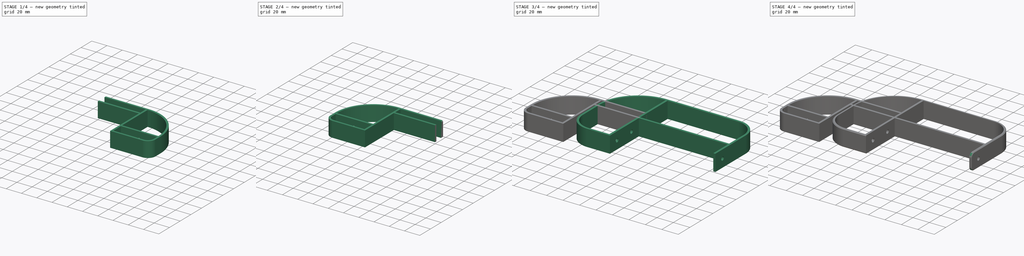
[diagram: build sequence overview — one tinted view per stage of 4, left to right]
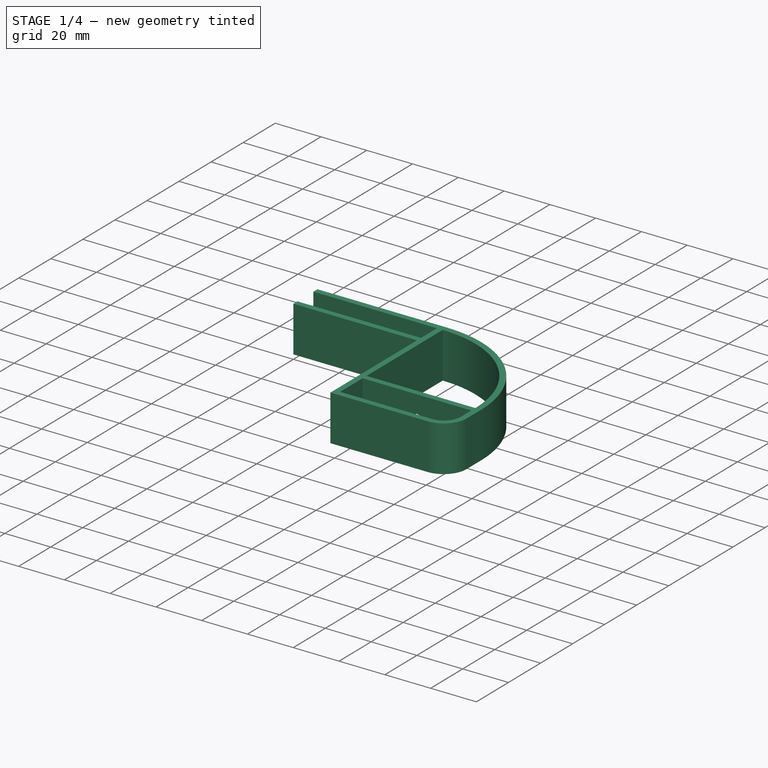
[diagram: stage 1 of 4 — iso view after this stage's code; geometry added in this stage tinted green]
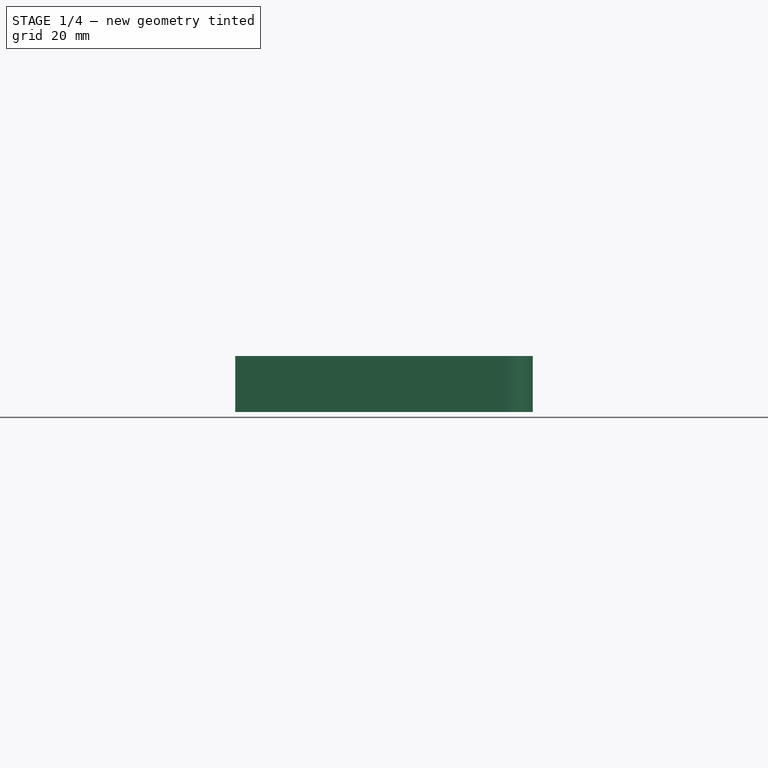
[diagram: stage 1 of 4 — front view after this stage's code; geometry added in this stage tinted green]
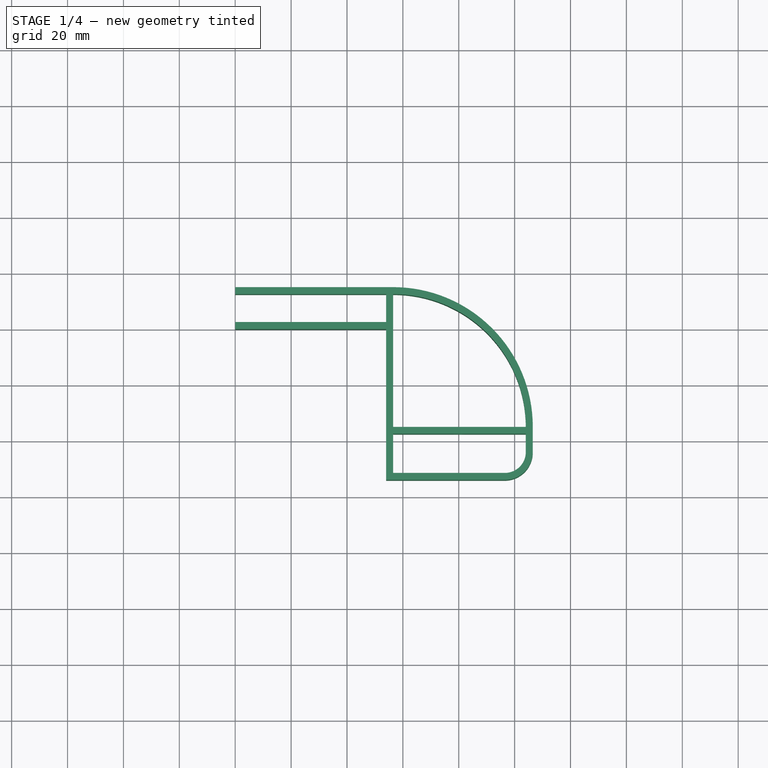
[diagram: stage 1 of 4 — top view after this stage's code; geometry added in this stage tinted green]
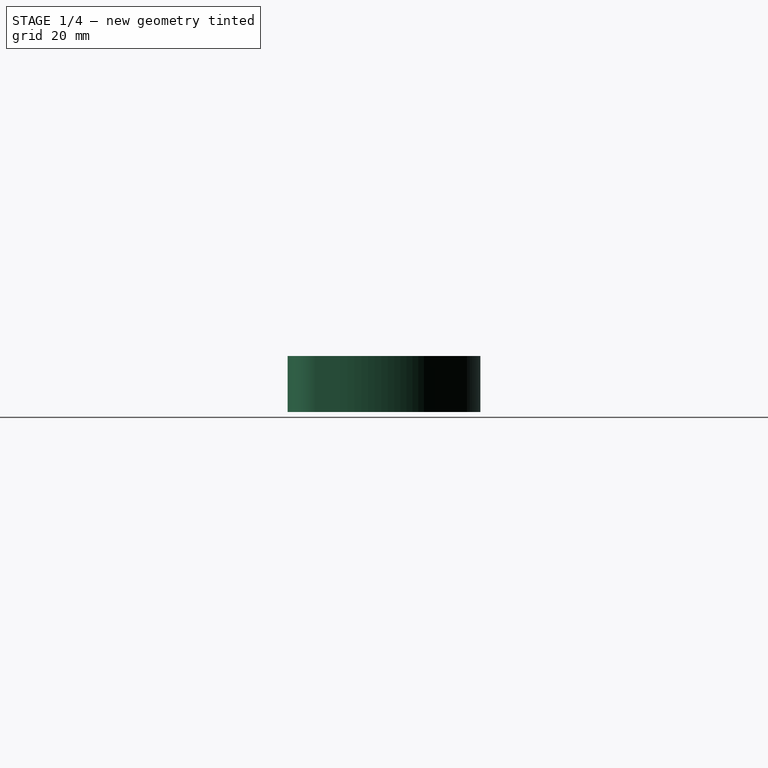
[diagram: stage 1 of 4 — right view after this stage's code; geometry added in this stage tinted green]
FCSTD DOCUMENT  (FreeCAD 0.21R33694 (Git))
Label: Bumpers
License: All rights reserved
LicenseURL: http://en.wikipedia.org/wiki/All_rights_reserved
objects: Sketcher::SketchObject×5, PartDesign::Pocket×3, PartDesign::Pad×2, PartDesign::Chamfer×2, PartDesign::Body×2, App::Part×2, PartDesign::Fillet×1, PartDesign::FeatureBase×1, Part::Mirroring×1
note: 25 computed .brp shape members not serialized (recipe doc carries the construction recipe); baked Part::Feature solids carry a one-line shape summary decoded from their .brp

FEATURE [PartDesign::Body] Body  label="bumper_asymmetric_body"
  Group = -> [Sketch,Pad,Sketch001,Sketch002,Pocket,Pocket001,Fillet,Chamfer]
  Origin = -> Origin001
  Tip = -> Chamfer
FEATURE [App::Part] Part  label="bumper_main"
  Group = -> [Body]
  Origin = -> Origin
  Placement = pos=(0,200,0) rot=(0,0,1;0rad)
FEATURE [Sketcher::SketchObject] Sketch003
  FullyConstrained = true
  MapMode = 5
  Support = -> [XY_Plane003]
  expr: Constraints[62] = 108 / 2
  sketch-geometry (25):
    g0: LineSegment StartX=0 StartY=0 StartZ=0 EndX=54 EndY=0 EndZ=0
    g1: LineSegment StartX=54 StartY=0 StartZ=0 EndX=54 EndY=-54 EndZ=0
    g2: LineSegment StartX=106.5 StartY=-44 StartZ=0 EndX=106.5 EndY=-35 EndZ=0
    g3: ArcOfCircle CenterX=56.5 CenterY=-35 CenterZ=0 NormalX=0 NormalY=0 NormalZ=1 AngleXU=0 Radius=50 StartAngle=0 EndAngle=1.5708
    g4: LineSegment StartX=56.5 StartY=15 StartZ=0 EndX=0 EndY=15 EndZ=0
    g5: LineSegment StartX=0 StartY=15 StartZ=0 EndX=0 EndY=12.5 EndZ=0
    g6: ArcOfCircle CenterX=96.5 CenterY=-44 CenterZ=0 NormalX=0 NormalY=0 NormalZ=1 AngleXU=0 Radius=10 StartAngle=4.71239 EndAngle=6.28318
    g7: LineSegment StartX=96.5 StartY=-54 StartZ=0 EndX=54 EndY=-54 EndZ=0
    g8: LineSegment StartX=0 StartY=12.5 StartZ=0 EndX=54 EndY=12.5 EndZ=0
    g9: LineSegment StartX=54 StartY=12.5 StartZ=0 EndX=54 EndY=2.5 EndZ=0
    g10: LineSegment StartX=54 StartY=2.5 StartZ=0 EndX=0 EndY=2.5 EndZ=0
    g11: LineSegment StartX=0 StartY=2.5 StartZ=0 EndX=0 EndY=0 EndZ=0
    g12: LineSegment StartX=56.5 StartY=12.5 StartZ=0 EndX=56.5 EndY=-35 EndZ=0
    g13: LineSegment StartX=56.5 StartY=-35 StartZ=0 EndX=104 EndY=-35 EndZ=0
    g14: LineSegment StartX=56.5 StartY=-37.5 StartZ=0 EndX=56.5 EndY=-51.5 EndZ=0
    g15: LineSegment StartX=56.5 StartY=-51.5 StartZ=0 EndX=96.5 EndY=-51.5 EndZ=0
    g16: LineSegment StartX=56.5 StartY=-37.5 StartZ=0 EndX=104 EndY=-37.5 EndZ=0
    g17: LineSegment StartX=104 StartY=-37.5 StartZ=0 EndX=104 EndY=-44 EndZ=0
    g18: ArcOfCircle CenterX=96.5 CenterY=-44 CenterZ=0 NormalX=0 NormalY=0 NormalZ=1 AngleXU=0 Radius=7.5 StartAngle=4.71239 EndAngle=6.28318
    g19: ArcOfCircle CenterX=56.5 CenterY=-35 CenterZ=0 NormalX=0 NormalY=0 NormalZ=1 AngleXU=0 Radius=47.5 StartAngle=0 EndAngle=1.5708
    g20: LineSegment StartX=54 StartY=12.5 StartZ=0 EndX=56.5 EndY=12.5 EndZ=0
    g21: LineSegment StartX=54 StartY=2.5 StartZ=0 EndX=54 EndY=0 EndZ=0
    g22: LineSegment StartX=56.5 StartY=-35 StartZ=0 EndX=56.5 EndY=-37.5 EndZ=0
    g23: LineSegment StartX=104 StartY=-35 StartZ=0 EndX=104 EndY=-37.5 EndZ=0
    g24: LineSegment StartX=104 StartY=-35 StartZ=0 EndX=106.5 EndY=-35 EndZ=0
  constraints (69):
    c: Coincident(g0,g-1)
    c: PointOnObject(g0,g-1)
    c: Coincident(g0,g1)
    c: Vertical(g1)
    c: Vertical(g2)
    c: Tangent(g2,g3) = -1.5708
    c: Tangent(g3,g4) = -1.5708
    c: PointOnObject(g4,g-2)
    c: Horizontal(g4)
    c: Coincident(g5,g4)
    c: PointOnObject(g5,g-2)
    c: Coincident(g6,g2)
    c: Coincident(g7,g6)
    c: Coincident(g7,g1)
    c: Horizontal(g7)
    c: Coincident(g5,g8)
    c: Horizontal(g8)
    c: Coincident(g8,g9)
    c: Vertical(g9)
    c: Coincident(g9,g10)
    c: PointOnObject(g10,g-2)
    c: Horizontal(g10)
    c: Coincident(g10,g11)
    c: Coincident(g11,g0)
    c: Vertical(g12)
    c: Coincident(g12,g13)
    c: Horizontal(g13)
    c: Vertical(g14)
    c: Coincident(g15,g14)
    c: Horizontal(g15)
    c: Coincident(g16,g14)
    c: Horizontal(g16)
    c: Coincident(g17,g16)
    c: Vertical(g17)
    c: Coincident(g18,g6)
    c: Coincident(g18,g15)
    c: Coincident(g18,g17)
    c: Coincident(g19,g12)
    c: Coincident(g19,g12)
    c: Coincident(g19,g13)
    c: Coincident(g20,g8)
    c: Coincident(g20,g12)
    c: Horizontal(g20)
    c: Coincident(g21,g9)
    c: Coincident(g21,g0)
    c: Coincident(g22,g12)
    c: Coincident(g22,g14)
    c: Coincident(g23,g13)
    c: Coincident(g23,g16)
    c: Coincident(g24,g13)
    c: Coincident(g24,g2)
    c: Horizontal(g24)
    c: Vertical(g22)
    c: Vertical(g23)
    c: Vertical(g21)
    c: Tangent(g6,g2)
    c: Tangent(g6,g7)
    c: Tangent(g18,g15)
    c: Tangent(g18,g17)
    c: Distance(g9) = 10
    c: Distance(g21) = 2.5
    c: Equal(g5,g11)
    c: Distance(g0) = 54
    c: Equal(g21,g22)
    c: Equal(g21,g24)
    c: Equal(g21,g20)
    c: Equal(g0,g1)
    c: Radius(g3) = 50
    c: Radius(g6) = 10
FEATURE [PartDesign::Pad] Pad001
  Direction = (0,0,1)
  Length = 20
  Length2 = 100
  Profile = -> Sketch003
  Type = 0
FEATURE [Sketcher::SketchObject] Sketch004
  ExternalGeometry = -> [Pad001]
  FullyConstrained = true
  MapMode = 5
  Placement = pos=(0,-37.5,0) rot=(1,0,0;1.5708rad)
  Support = -> [Pad001]
  sketch-geometry (6):
    g0: LineSegment StartX=104 StartY=20 StartZ=0 EndX=80.25 EndY=10 EndZ=0
    g1: LineSegment StartX=80.25 StartY=10 StartZ=0 EndX=56.5 EndY=0 EndZ=0
    g2: LineSegment StartX=104 StartY=6e-16 StartZ=0 EndX=80.25 EndY=10 EndZ=0
    g3: LineSegment StartX=80.25 StartY=10 StartZ=0 EndX=56.5 EndY=20 EndZ=0
    g4: Circle CenterX=80.25 CenterY=10 CenterZ=0 NormalX=0 NormalY=0 NormalZ=1 AngleXU=0 Radius=2.25
    g5: Circle CenterX=80.25 CenterY=10 CenterZ=0 NormalX=0 NormalY=0 NormalZ=1 AngleXU=0 Radius=2.25
  constraints (15):
    c: Coincident(g0,g-3)
    c: Coincident(g1,g0)
    c: Coincident(g1,g-6)
    c: Coincident(g2,g-5)
    c: Coincident(g3,g2)
    c: PointOnObject(g3,g-4)
    c: Equal(g0,g1)
    c: Equal(g0,g3)
    c: Equal(g1,g2)
    c: Parallel(g0,g1)
    c: Parallel(g2,g3)
    c: Coincident(g4,g0)
    c: Coincident(g5,g2)
    c: Equal(g4,g5)
    c: Radius(g4) = 2.25
FEATURE [PartDesign::Pocket] Pocket002
  BaseFeature = -> Pad001
  Direction = (0,1,-2e-16)
  Length = 5
  Length2 = 100
  Profile = -> Sketch004
  Type = 2
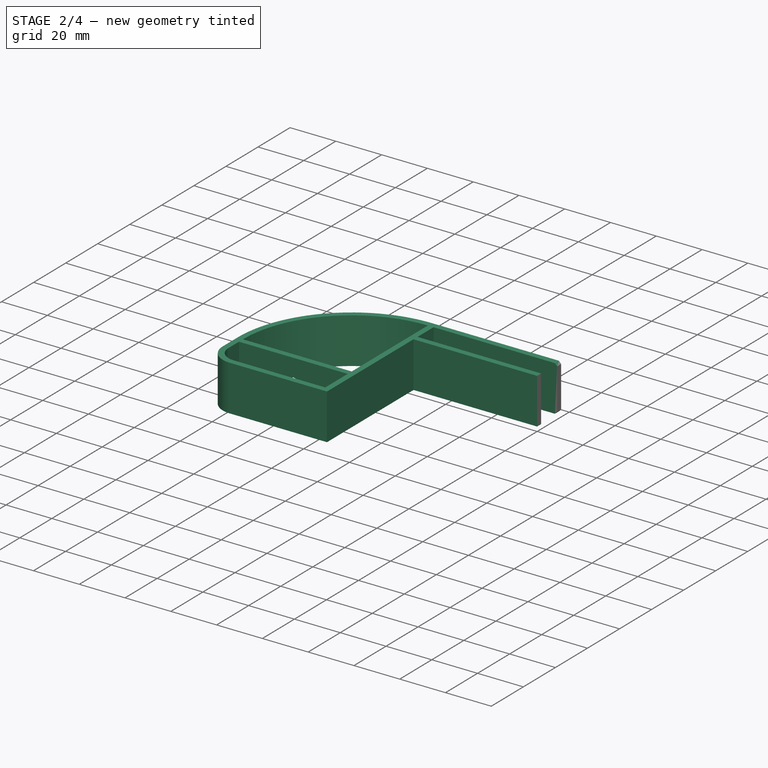
[diagram: stage 2 of 4 — iso view after this stage's code; geometry added in this stage tinted green]
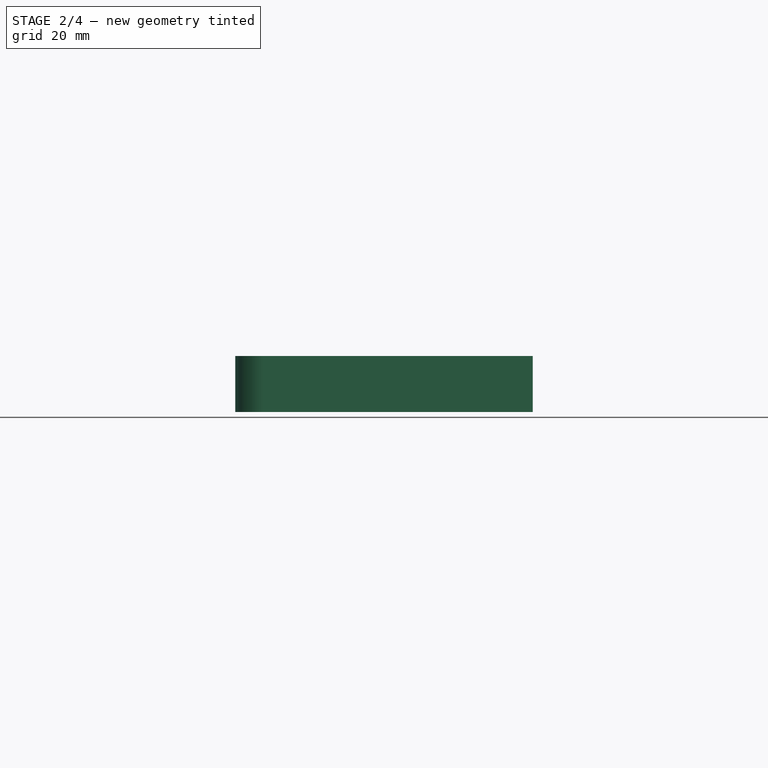
[diagram: stage 2 of 4 — front view after this stage's code; geometry added in this stage tinted green]
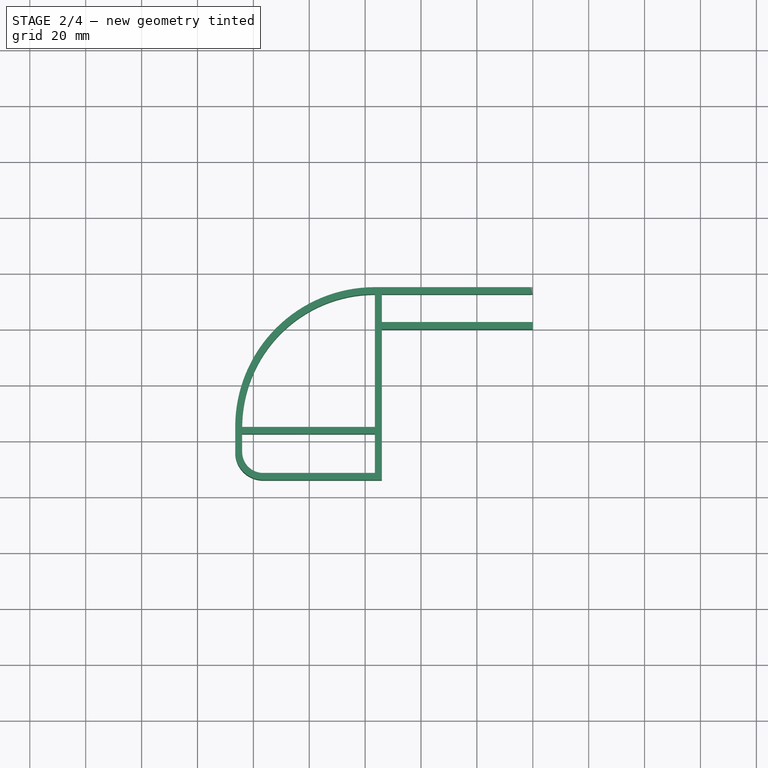
[diagram: stage 2 of 4 — top view after this stage's code; geometry added in this stage tinted green]
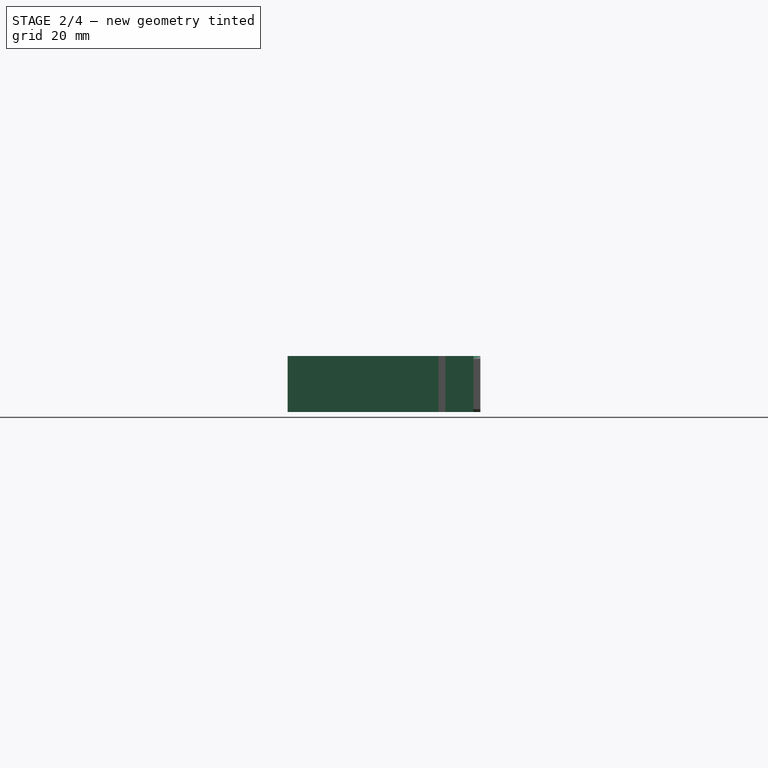
[diagram: stage 2 of 4 — right view after this stage's code; geometry added in this stage tinted green]
FEATURE [PartDesign::Chamfer] Chamfer001
  Angle = 45
  Base = -> Pocket002 [Edge16,Edge33]
  BaseFeature = -> Pocket002
  ChamferType = 0
  FlipDirection = false
  Size = 1
  Size2 = 1
  SupportTransform = false
  UseAllEdges = false
FEATURE [PartDesign::Body] Body001  label="bumper_symmetric_body"
  Group = -> [Sketch003,Pad001,Sketch004,Pocket002,Chamfer001]
  Origin = -> Origin003
  Tip = -> Chamfer001
FEATURE [PartDesign::FeatureBase] Clone
  BaseFeature = -> Body001
FEATURE [Part::Mirroring] Part__Mirroring  label="Clone (Mirror #1)"
  Base = (0,0,0)
  Normal = (1,0,0)
  Source = -> Clone
FEATURE [App::Part] Part001  label="bumper_rear"
  Group = -> [Body001,Clone,Part__Mirroring]
  Origin = -> Origin002
  Placement = pos=(100,0,0) rot=(0,0,1;3.14159rad)
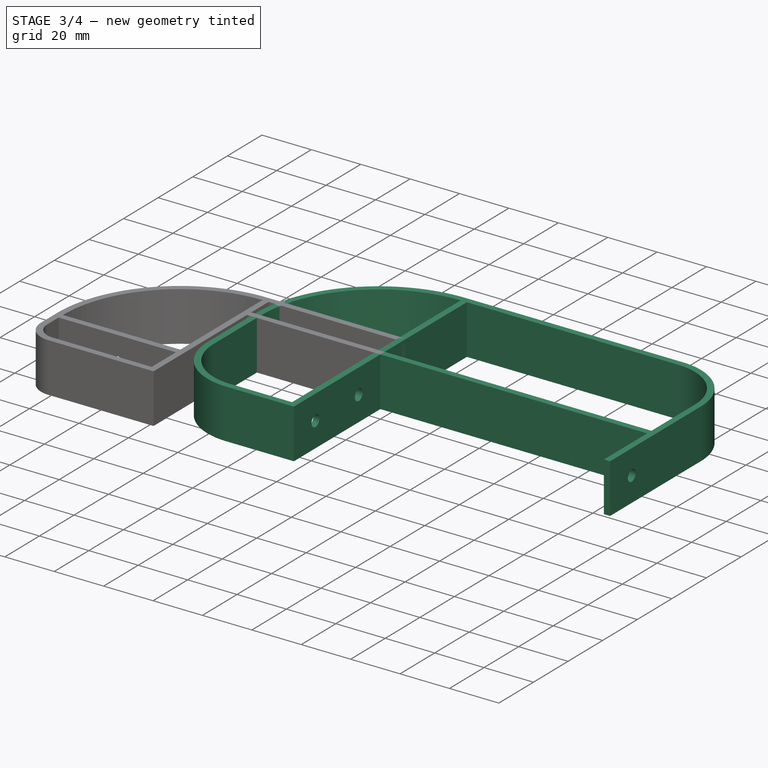
[diagram: stage 3 of 4 — iso view after this stage's code; geometry added in this stage tinted green]
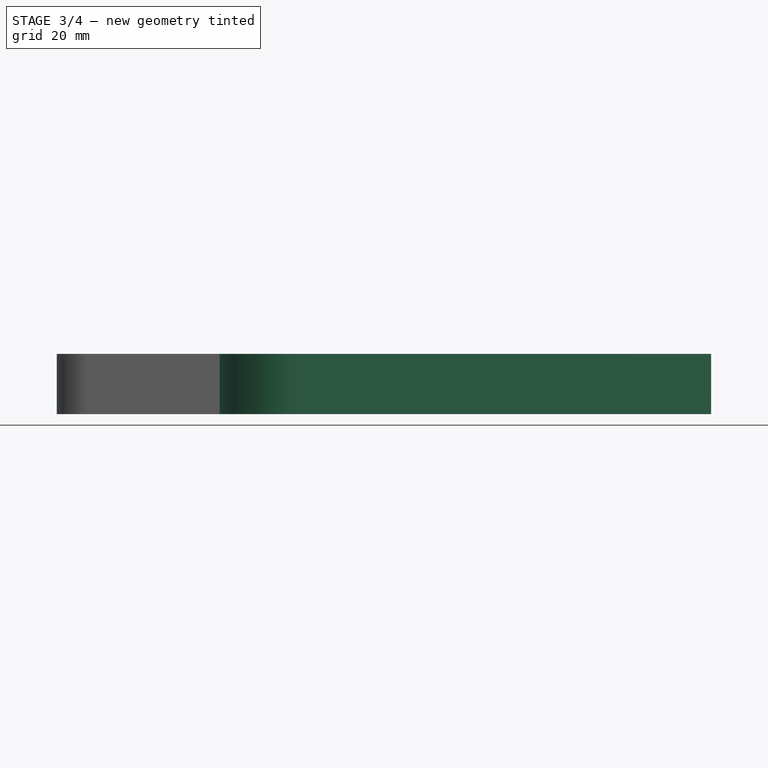
[diagram: stage 3 of 4 — front view after this stage's code; geometry added in this stage tinted green]
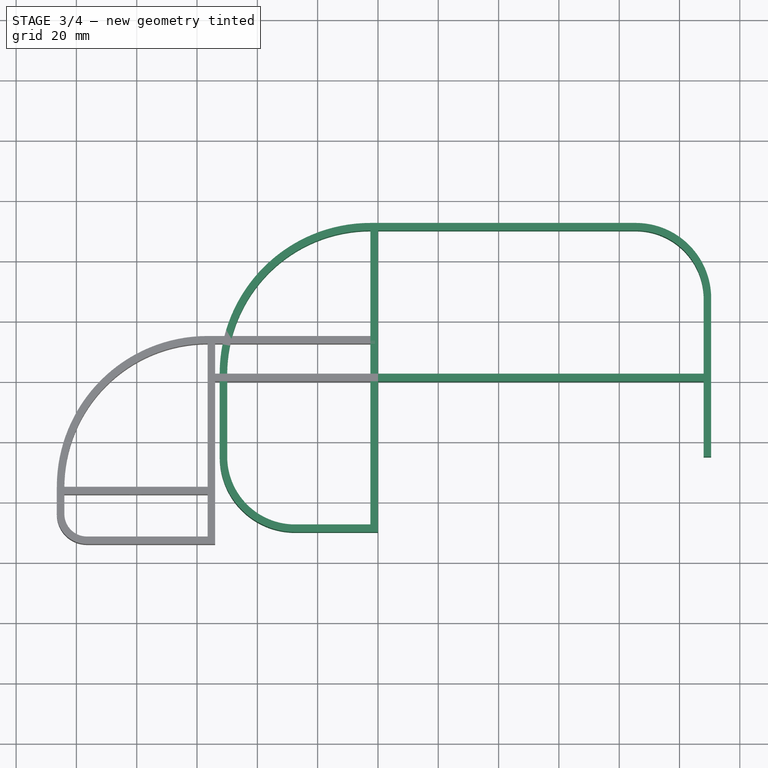
[diagram: stage 3 of 4 — top view after this stage's code; geometry added in this stage tinted green]
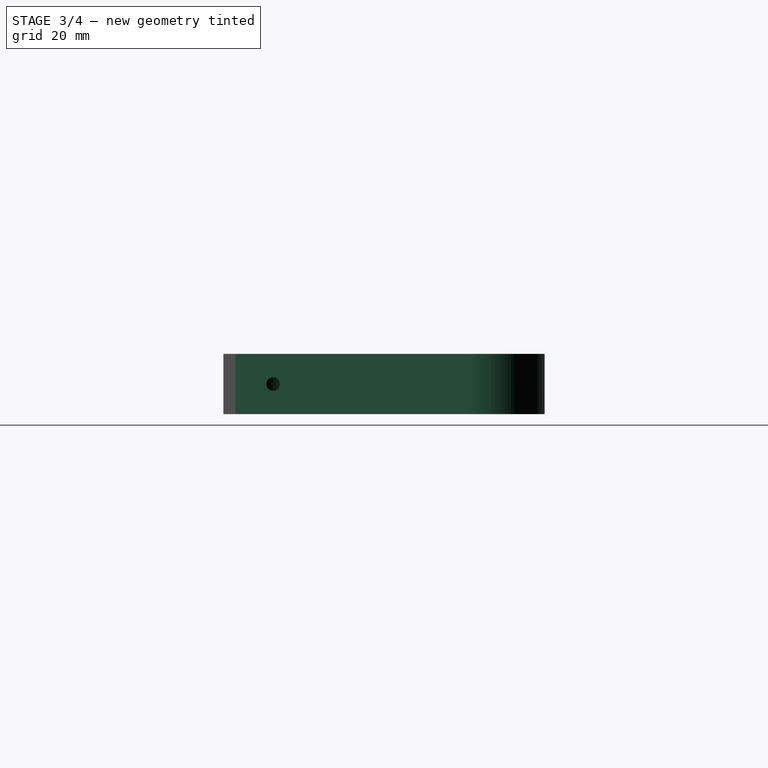
[diagram: stage 3 of 4 — right view after this stage's code; geometry added in this stage tinted green]
FEATURE [Sketcher::SketchObject] Sketch
  FullyConstrained = true
  MapMode = 5
  Support = -> [XY_Plane001]
  sketch-geometry (37):
    g0: LineSegment StartX=0 StartY=0 StartZ=0 EndX=0 EndY=-50 EndZ=0
    g1: LineSegment StartX=0 StartY=0 StartZ=0 EndX=108 EndY=0 EndZ=0
    g2: LineSegment StartX=108 StartY=0 StartZ=0 EndX=108 EndY=-25 EndZ=0
    g3: LineSegment StartX=108 StartY=-25 StartZ=0 EndX=110.5 EndY=-25 EndZ=0
    g4: LineSegment StartX=110.5 StartY=-25 StartZ=0 EndX=110.5 EndY=27.5 EndZ=0
    g5: ArcOfCircle CenterX=85.5 CenterY=27.5 CenterZ=0 NormalX=0 NormalY=0 NormalZ=1 AngleXU=0 Radius=25 StartAngle=6.28319 EndAngle=7.85398
    g6: LineSegment StartX=85.5 StartY=52.5 StartZ=0 EndX=0 EndY=52.5 EndZ=0
    g7: ArcOfCircle CenterX=-27.5 CenterY=-25 CenterZ=0 NormalX=0 NormalY=0 NormalZ=1 AngleXU=0 Radius=25 StartAngle=3.14159 EndAngle=4.71239
    g8: LineSegment StartX=-27.5 StartY=-50 StartZ=0 EndX=0 EndY=-50 EndZ=0
    g9: LineSegment StartX=-2.5 StartY=0 StartZ=0 EndX=-2.5 EndY=-47.5 EndZ=0
    g10: LineSegment StartX=-2.5 StartY=0 StartZ=0 EndX=-50 EndY=0 EndZ=0
    g11: LineSegment StartX=-50 StartY=0 StartZ=0 EndX=-50 EndY=-25 EndZ=0
    g12: ArcOfCircle CenterX=-27.5 CenterY=-25 CenterZ=0 NormalX=0 NormalY=0 NormalZ=1 AngleXU=0 Radius=22.5 StartAngle=3.14159 EndAngle=4.71239
    g13: LineSegment StartX=-27.5 StartY=-47.5 StartZ=0 EndX=-2.5 EndY=-47.5 EndZ=0
    g14: LineSegment StartX=0 StartY=2.5 StartZ=0 EndX=108 EndY=2.5 EndZ=0
    g15: LineSegment StartX=108 StartY=2.5 StartZ=0 EndX=108 EndY=27.5 EndZ=0
    g16: ArcOfCircle CenterX=85.5 CenterY=27.5 CenterZ=0 NormalX=0 NormalY=0 NormalZ=1 AngleXU=0 Radius=22.5 StartAngle=0 EndAngle=1.5708
    g17: LineSegment StartX=85.5 StartY=50 StartZ=0 EndX=0 EndY=50 EndZ=0
    g18: LineSegment StartX=0 StartY=50 StartZ=0 EndX=0 EndY=2.5 EndZ=0
    g19: LineSegment StartX=108 StartY=2.5 StartZ=0 EndX=108 EndY=0 EndZ=0
    g20: LineSegment StartX=0 StartY=52.5 StartZ=0 EndX=0 EndY=50 EndZ=0
    g21: LineSegment StartX=-2.5 StartY=0 StartZ=0 EndX=0 EndY=0 EndZ=0
    g22: LineSegment StartX=0 StartY=2.5 StartZ=0 EndX=0 EndY=0 EndZ=0
    g23: LineSegment StartX=0 StartY=2.5 StartZ=0 EndX=-2.5 EndY=2.5 EndZ=0
    g24: LineSegment StartX=-2.5 StartY=2.5 StartZ=0 EndX=-2.5 EndY=0 EndZ=0
    g25: ArcOfCircle CenterX=-2.5 CenterY=2.5 CenterZ=0 NormalX=0 NormalY=0 NormalZ=1 AngleXU=0 Radius=47.5 StartAngle=1.5708 EndAngle=3.14159
    g26: LineSegment StartX=-2.5 StartY=50 StartZ=0 EndX=-2.5 EndY=2.5 EndZ=0
    g27: LineSegment StartX=-2.5 StartY=2.5 StartZ=0 EndX=-50 EndY=2.5 EndZ=0
    g28: ArcOfCircle CenterX=-2.5 CenterY=2.5 CenterZ=0 NormalX=0 NormalY=0 NormalZ=1 AngleXU=0 Radius=50 StartAngle=1.5708 EndAngle=3.14159
    g29: LineSegment StartX=0 StartY=52.5 StartZ=0 EndX=-2.5 EndY=52.5 EndZ=0
    g30: LineSegment StartX=-2.5 StartY=52.5 StartZ=0 EndX=-2.5 EndY=50 EndZ=0
    g31: LineSegment StartX=-2.5 StartY=50 StartZ=0 EndX=0 EndY=50 EndZ=0
    g32: LineSegment StartX=-50 StartY=0 StartZ=0 EndX=-50 EndY=2.5 EndZ=0
    g33: LineSegment StartX=-50 StartY=2.5 StartZ=0 EndX=-52.5 EndY=2.5 EndZ=0
    g34: LineSegment StartX=-52.5 StartY=2.5 StartZ=0 EndX=-52.5 EndY=0 EndZ=0
    g35: LineSegment StartX=-52.5 StartY=0 StartZ=0 EndX=-50 EndY=0 EndZ=0
    g36: LineSegment StartX=-52.5 StartY=-25 StartZ=0 EndX=-52.5 EndY=0 EndZ=0
  constraints (98):
    c: Coincident(g-1,g0)
    c: PointOnObject(g0,g-2)
    c: Coincident(g0,g1)
    c: Horizontal(g1)
    c: Coincident(g1,g2)
    c: Vertical(g2)
    c: Coincident(g3,g2)
    c: Horizontal(g3)
    c: Coincident(g4,g3)
    c: Vertical(g4)
    c: Coincident(g5,g4)
    c: Coincident(g6,g5)
    c: Horizontal(g6)
    c: Coincident(g8,g7)
    c: Coincident(g8,g0)
    c: Horizontal(g8)
    c: Tangent(g7,g8)
    c: Tangent(g5,g6)
    c: Tangent(g5,g4)
    c: Distance(g3) = 2.5
    c: Distance(g1) = 108
    c: Distance(g2) = 25
    c: Distance(g0) = 50
    c: Radius(g5) = 25
    c: Equal(g7,g5)
    c: Vertical(g9)
    c: Coincident(g9,g10)
    c: Horizontal(g10)
    c: Coincident(g10,g11)
    c: Vertical(g11)
    c: Tangent(g11,g12) = -1.5708
    c: Tangent(g12,g13) = -1.5708
    c: Coincident(g13,g9)
    c: Horizontal(g14)
    c: Coincident(g14,g15)
    c: Vertical(g15)
    c: Tangent(g15,g16) = -1.5708
    c: Tangent(g16,g17) = -1.5708
    c: Coincident(g17,g18)
    c: Coincident(g18,g14)
    c: Vertical(g18)
    c: Coincident(g19,g14)
    c: Coincident(g19,g1)
    c: Vertical(g19)
    c: Equal(g3,g19)
    c: Coincident(g16,g5)
    c: Coincident(g20,g6)
    c: Vertical(g20)
    c: Equal(g19,g20)
    c: Coincident(g21,g9)
    c: Horizontal(g21)
    c: Equal(g21,g20)
    c: Coincident(g7,g12)
    c: Horizontal(g13)
    c: Coincident(g21,g0)
    c: Coincident(g17,g20)
    c: Coincident(g22,g14)
    c: PointOnObject(g22,g0)
    c: Vertical(g22)
    c: Coincident(g23,g14)
    c: Horizontal(g23)
    c: Coincident(g24,g23)
    c: Coincident(g24,g9)
    c: Vertical(g24)
    c: Coincident(g25,g23)
    c: Coincident(g26,g25)
    c: Coincident(g26,g25)
    c: Vertical(g26)
    c: Coincident(g27,g25)
    c: Coincident(g27,g25)
    c: Horizontal(g27)
    c: Coincident(g28,g25)
    c: Coincident(g29,g6)
    c: Coincident(g29,g28)
    c: Horizontal(g29)
    c: Coincident(g30,g28)
    c: Coincident(g30,g25)
    c: Coincident(g31,g25)
    c: Coincident(g31,g17)
    c: Horizontal(g31)
    c: Vertical(g30)
    c: Coincident(g32,g10)
    c: Coincident(g32,g25)
    c: Coincident(g33,g25)
    c: Coincident(g33,g28)
    c: Horizontal(g33)
    c: Coincident(g34,g28)
    c: Vertical(g34)
    c: Coincident(g35,g34)
    c: Coincident(g35,g10)
    c: Vertical(g32)
    c: Horizontal(g35)
    c: Coincident(g36,g7)
    c: Coincident(g36,g34)
    c: Vertical(g36)
    c: Radius(g28) = 50
    c: Tangent(g7,g36)
    c: Equal(g24,g22)
FEATURE [PartDesign::Pad] Pad
  Direction = (0,0,1)
  Length = 20
  Length2 = 100
  Profile = -> Sketch
  Type = 0
FEATURE [Sketcher::SketchObject] Sketch001
  ExternalGeometry = -> [Pad]
  FullyConstrained = true
  MapMode = 5
  Placement = pos=(0,0,0) rot=(0.57735,0.57735,0.57735;2.0944rad)
  Support = -> [Pad]
  sketch-geometry (10):
    g0: LineSegment StartX=0 StartY=20 StartZ=0 EndX=0 EndY=0 EndZ=0
    g1: LineSegment StartX=0 StartY=0 StartZ=0 EndX=-25 EndY=0 EndZ=0
    g2: LineSegment StartX=-25 StartY=0 StartZ=0 EndX=-50 EndY=0 EndZ=0
    g3: LineSegment StartX=-25 StartY=0 StartZ=0 EndX=-25 EndY=20 EndZ=0
    g4: LineSegment StartX=-25 StartY=20 StartZ=0 EndX=-37.5 EndY=10 EndZ=0
    g5: LineSegment StartX=-25 StartY=20 StartZ=0 EndX=-12.5 EndY=10 EndZ=0
    g6: LineSegment StartX=-12.5 StartY=10 StartZ=0 EndX=0 EndY=0 EndZ=0
    g7: LineSegment StartX=-37.5 StartY=10 StartZ=0 EndX=-50 EndY=0 EndZ=0
    g8: Circle CenterX=-37.5 CenterY=10 CenterZ=0 NormalX=0 NormalY=0 NormalZ=1 AngleXU=0 Radius=2.25
    g9: Circle CenterX=-12.5 CenterY=10 CenterZ=0 NormalX=0 NormalY=0 NormalZ=1 AngleXU=0 Radius=2.25
  constraints (24):
    c: Coincident(g0,g-3)
    c: Coincident(g0,g-1)
    c: Coincident(g1,g-1)
    c: PointOnObject(g1,g-1)
    c: Coincident(g2,g1)
    c: PointOnObject(g3,g-3)
    c: Vertical(g3)
    c: Coincident(g4,g3)
    c: Coincident(g5,g3)
    c: Coincident(g6,g5)
    c: Coincident(g6,g-1)
    c: Equal(g6,g5)
    c: Parallel(g5,g6)
    c: Coincident(g-4,g2)
    c: Coincident(g7,g4)
    c: Coincident(g7,g2)
    c: Equal(g4,g7)
    c: Parallel(g7,g4)
    c: Equal(g2,g1)
    c: Coincident(g3,g1)
    c: Coincident(g8,g4)
    c: Coincident(g9,g5)
    c: Equal(g8,g9)
    c: Radius(g8) = 2.25
FEATURE [Sketcher::SketchObject] Sketch002
  ExternalGeometry = -> [Pad]
  FullyConstrained = true
  MapMode = 5
  Placement = pos=(108,0,0) rot=(0.57735,-0.57735,-0.57735;2.0944rad)
  Support = -> [Pad]
  sketch-geometry (3):
    g0: LineSegment StartX=25 StartY=0 StartZ=0 EndX=12.5 EndY=10 EndZ=0
    g1: LineSegment StartX=12.5 StartY=10 StartZ=0 EndX=0 EndY=20 EndZ=0
    g2: Circle CenterX=12.5 CenterY=10 CenterZ=0 NormalX=0 NormalY=0 NormalZ=1 AngleXU=0 Radius=2.25
  constraints (7):
    c: Coincident(g0,g-4)
    c: Coincident(g1,g0)
    c: Coincident(g1,g-3)
    c: Parallel(g1,g0)
    c: Equal(g1,g0)
    c: Coincident(g2,g0)
    c: Radius(g2) = 2.25
FEATURE [PartDesign::Pocket] Pocket
  BaseFeature = -> Pad
  Direction = (-1,0,0)
  Length = 5
  Length2 = 100
  Profile = -> Sketch001
  Type = 2
FEATURE [PartDesign::Pocket] Pocket001
  BaseFeature = -> Pocket
  Direction = (1,0,0)
  Length = 5
  Length2 = 100
  Profile = -> Sketch002
  Type = 2
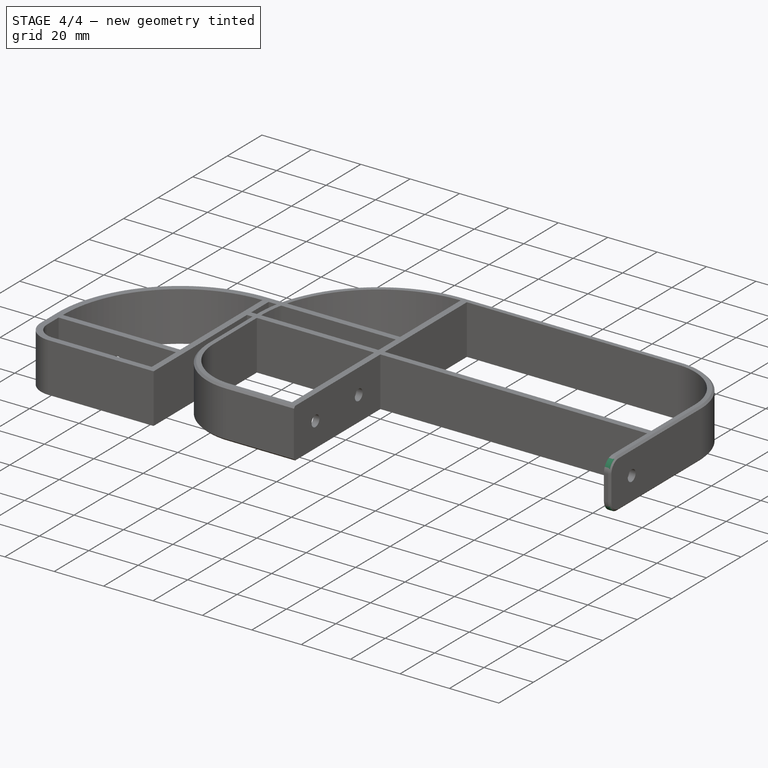
[diagram: stage 4 of 4 — iso view after this stage's code; geometry added in this stage tinted green]
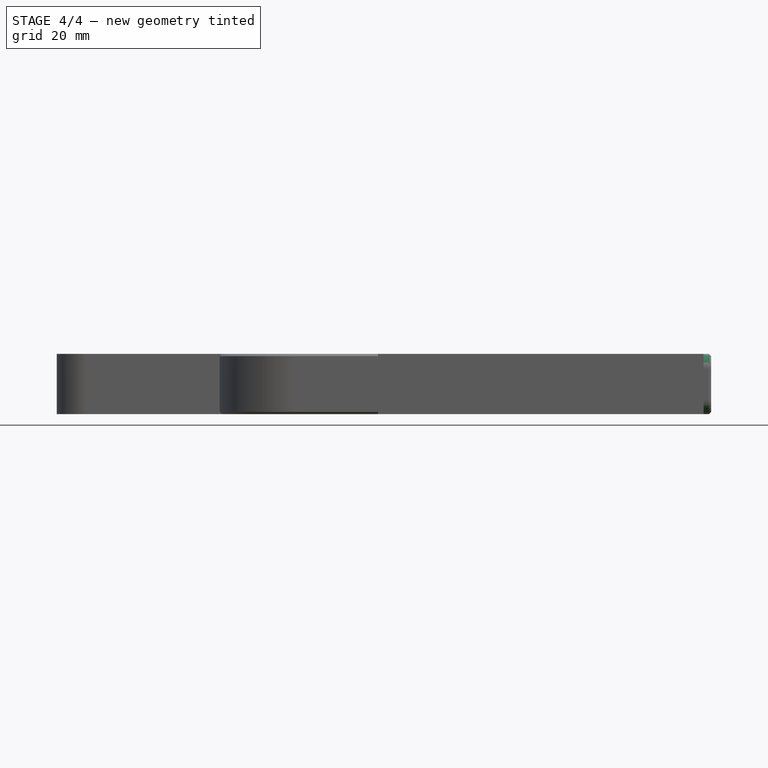
[diagram: stage 4 of 4 — front view after this stage's code; geometry added in this stage tinted green]
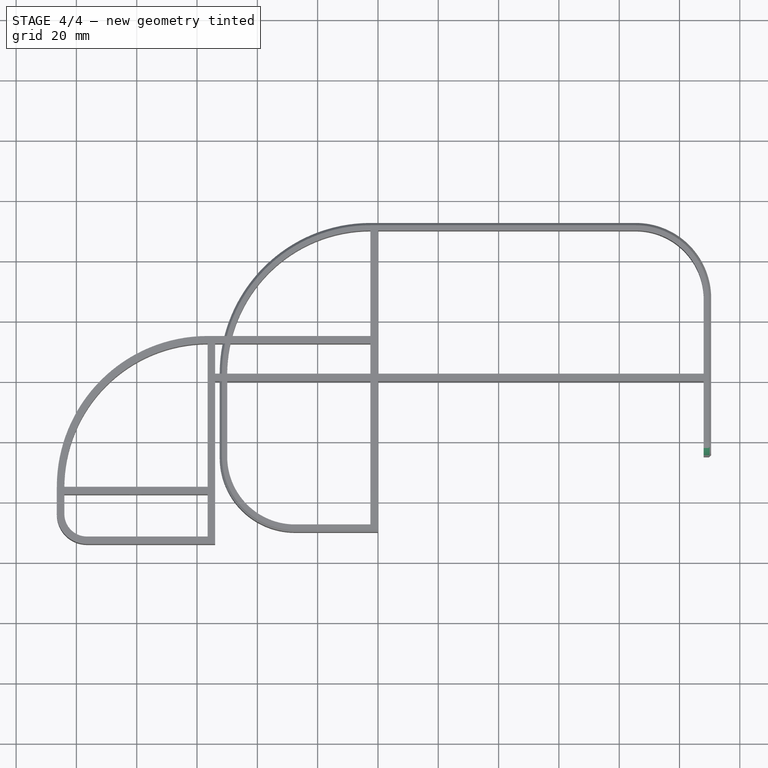
[diagram: stage 4 of 4 — top view after this stage's code; geometry added in this stage tinted green]
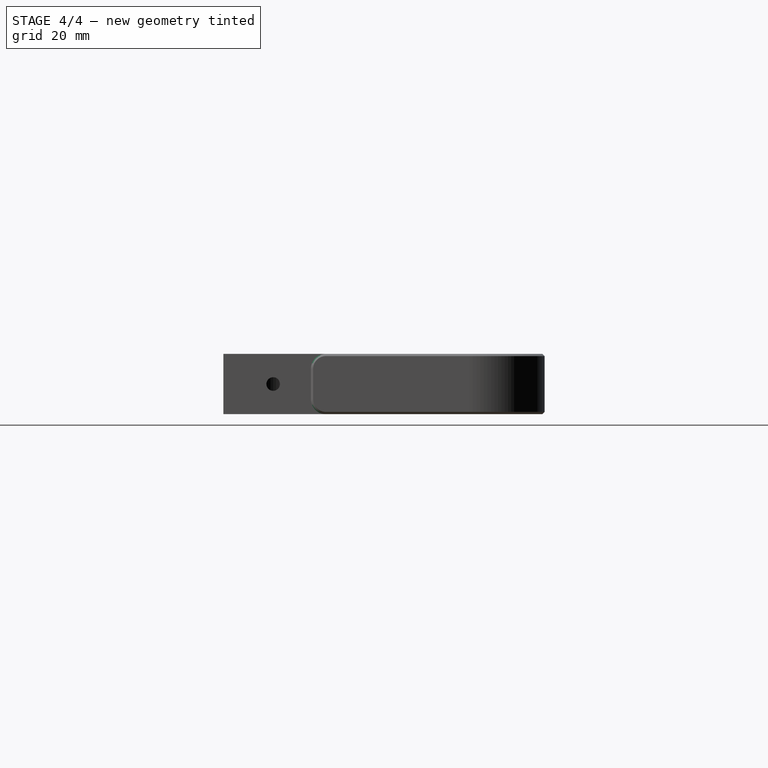
[diagram: stage 4 of 4 — right view after this stage's code; geometry added in this stage tinted green]
FEATURE [PartDesign::Fillet] Fillet
  Base = -> Pocket001 [Edge12,Edge35]
  BaseFeature = -> Pocket001
  Radius = 5
  SupportTransform = false
  UseAllEdges = false
FEATURE [PartDesign::Chamfer] Chamfer
  Angle = 45
  Base = -> Fillet [Edge53,Edge9]
  BaseFeature = -> Fillet
  ChamferType = 0
  FlipDirection = false
  Size = 0.75
  Size2 = 1
  SupportTransform = false
  UseAllEdges = false
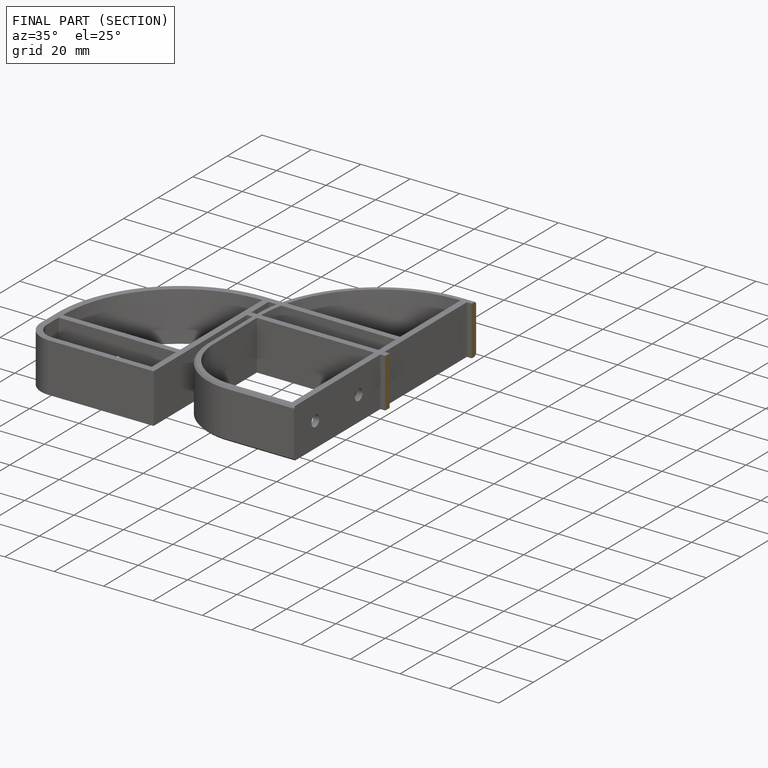
[diagram: finished part — half-section view (interior)]
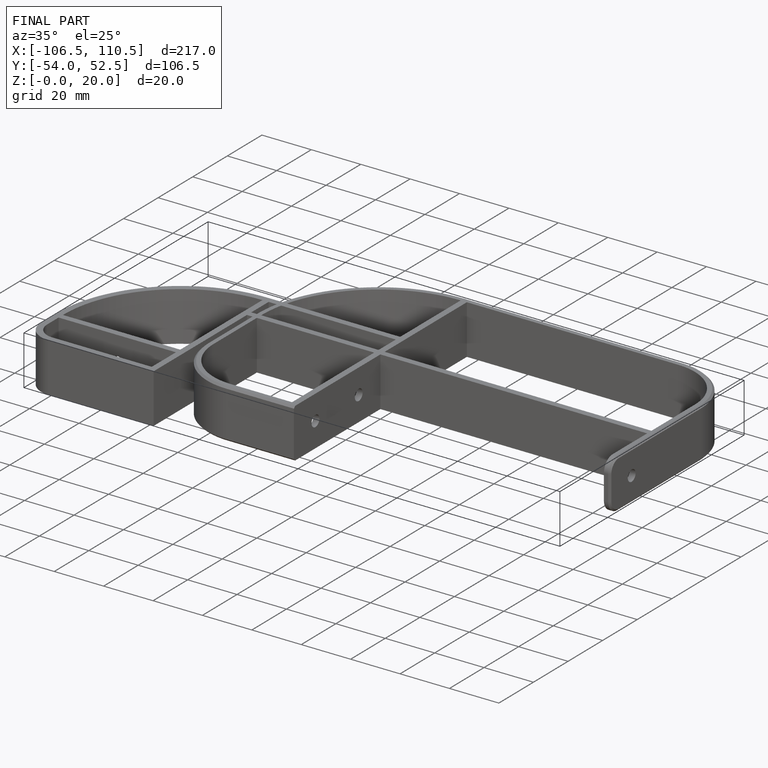
[diagram: finished part — iso view with bounding-box wireframe]
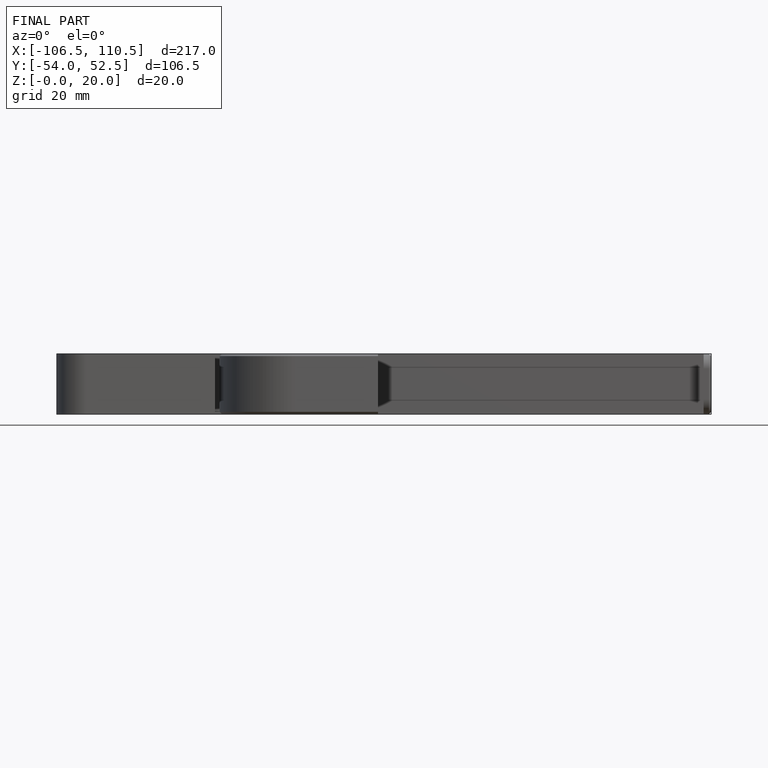
[diagram: finished part — front view with bounding-box wireframe]
